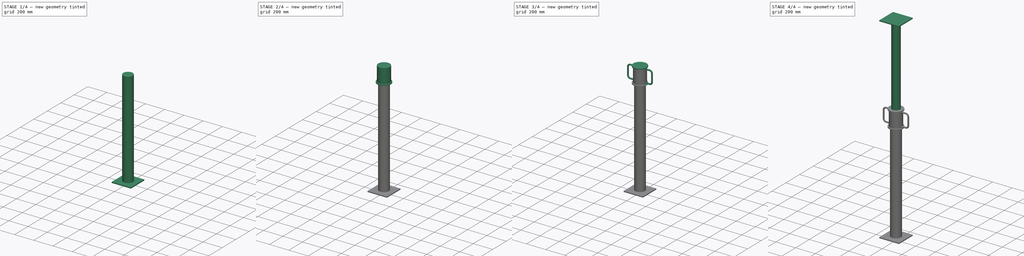
[diagram: build sequence overview — one tinted view per stage of 4, left to right]
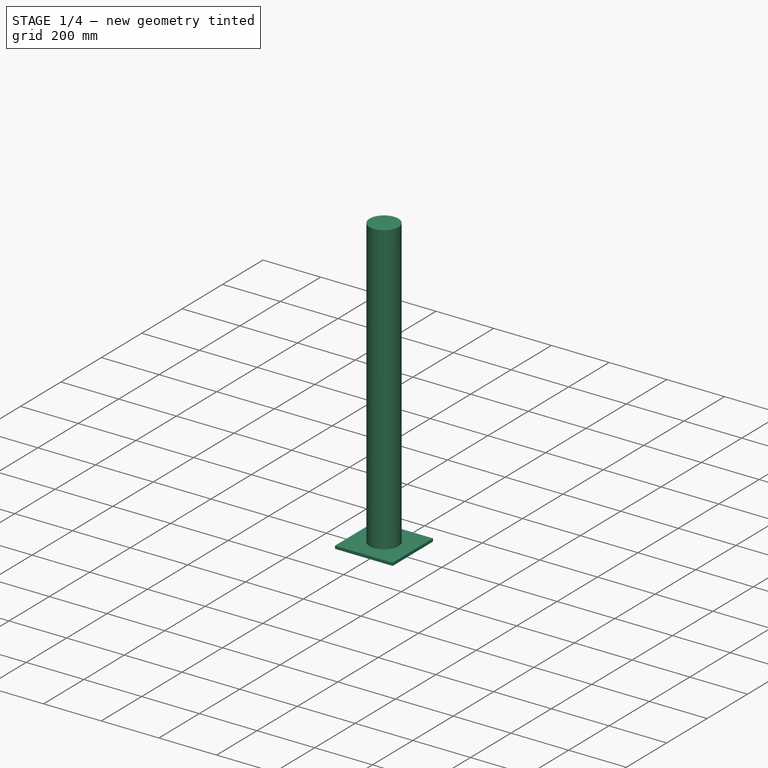
[diagram: stage 1 of 4 — iso view after this stage's code; geometry added in this stage tinted green]
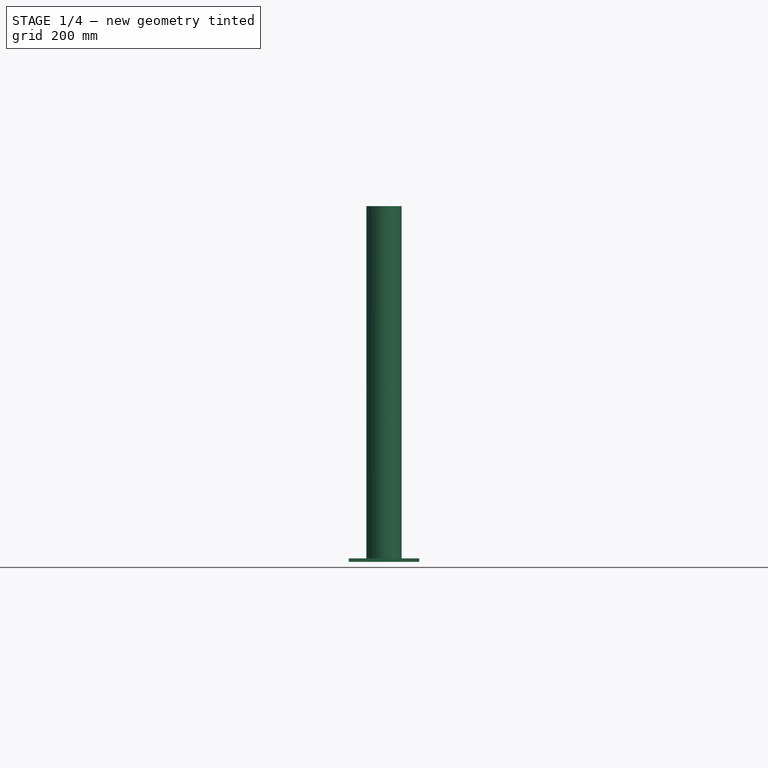
[diagram: stage 1 of 4 — front view after this stage's code; geometry added in this stage tinted green]
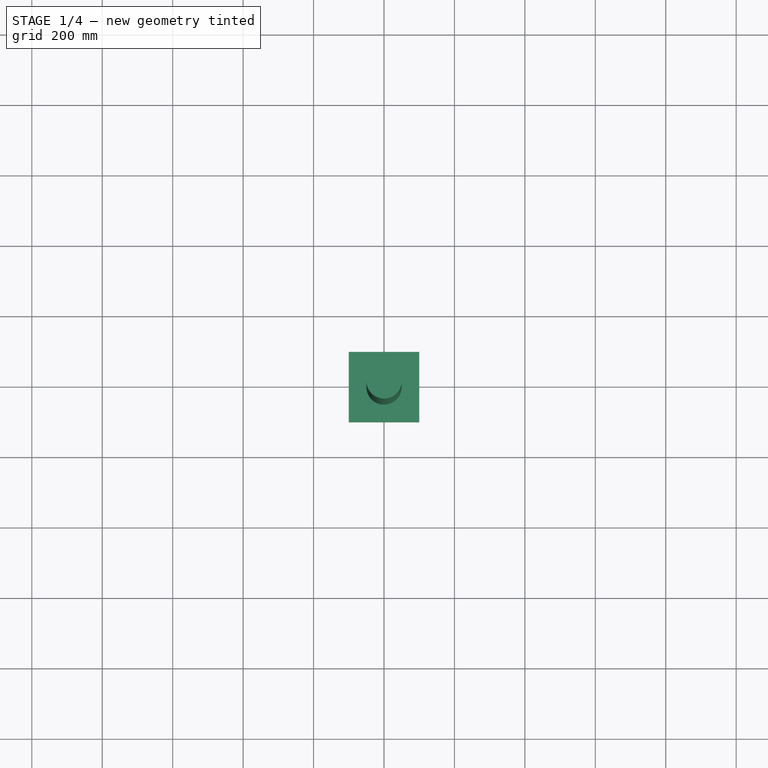
[diagram: stage 1 of 4 — top view after this stage's code; geometry added in this stage tinted green]
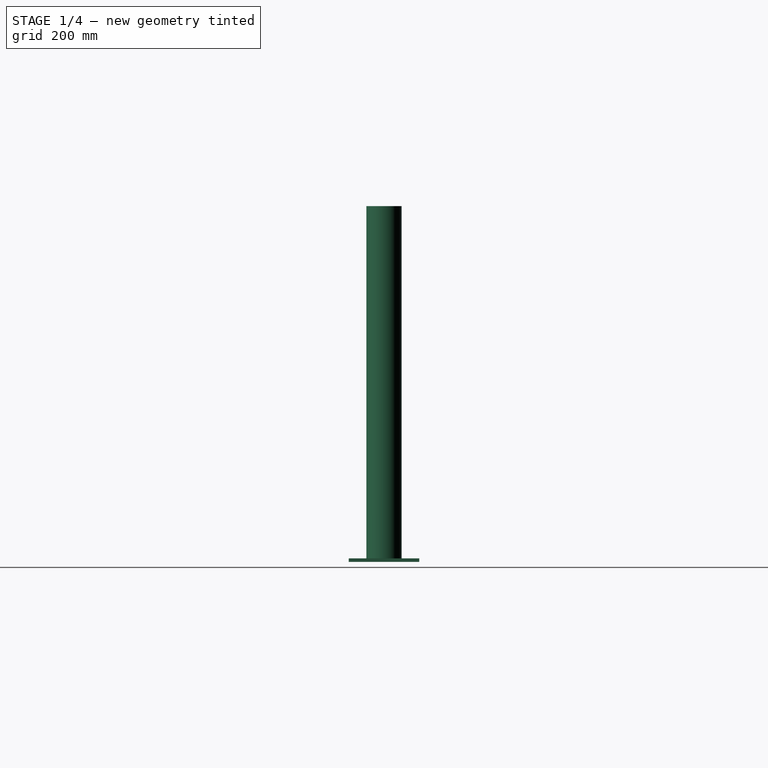
[diagram: stage 1 of 4 — right view after this stage's code; geometry added in this stage tinted green]
FCSTD DOCUMENT  (FreeCAD 0.17R11649 (Git))
Label: Slab adjustable scaffolder
License: All rights reserved
LicenseURL: http://en.wikipedia.org/wiki/All_rights_reserved
objects: Sketcher::SketchObject×9, PartDesign::Pad×7, PartDesign::AdditivePipe×1, PartDesign::Mirrored×1, PartDesign::Body×1
note: 27 computed .brp shape members not serialized (recipe doc carries the construction recipe); baked Part::Feature solids carry a one-line shape summary decoded from their .brp

FEATURE [Sketcher::SketchObject] Sketch
  MapMode = 5
  Support = -> [XY_Plane]
  expr: Constraints[11] = Constraints.Width / 2
  expr: Constraints[10] = Constraints.Length / 2
  sketch-geometry (4):
    g0: LineSegment StartX=-100 StartY=-100 StartZ=0 EndX=100 EndY=-100 EndZ=0
    g1: LineSegment StartX=100 StartY=-100 StartZ=0 EndX=100 EndY=100 EndZ=0
    g2: LineSegment StartX=100 StartY=100 StartZ=0 EndX=-100 EndY=100 EndZ=0
    g3: LineSegment StartX=-100 StartY=100 StartZ=0 EndX=-100 EndY=-100 EndZ=0
  constraints (12):
    c: Coincident(g0,g1)
    c: Coincident(g1,g2)
    c: Coincident(g2,g3)
    c: Coincident(g3,g0)
    c: Horizontal(g0)
    c: Horizontal(g2)
    c: Vertical(g1)
    c: Vertical(g3)
    c: DistanceX(g0,g0) = 200  'Length'
    c: DistanceY(g3,g3) = 200  'Width'
    c: DistanceX(g0,g-1) = 100
    c: DistanceY(g0,g-1) = 100
FEATURE [PartDesign::Pad] Pad
  Length = 10
  Length2 = 100
  Profile = -> Sketch
  Type = 0
FEATURE [Sketcher::SketchObject] Sketch001
  MapMode = 5
  Placement = pos=(0,0,10) rot=(0,0,1;0rad)
  Support = -> [Pad]
  sketch-geometry (1):
    g0: Circle CenterX=0 CenterY=0 CenterZ=0 NormalX=0 NormalY=0 NormalZ=1 Radius=50
  constraints (2):
    c: Coincident(g0,g-1)
    c: Radius(g0) = 50
FEATURE [PartDesign::Pad] Pad001
  BaseFeature = -> Pad
  Length = 1000
  Length2 = 100
  Profile = -> Sketch001
  Type = 0
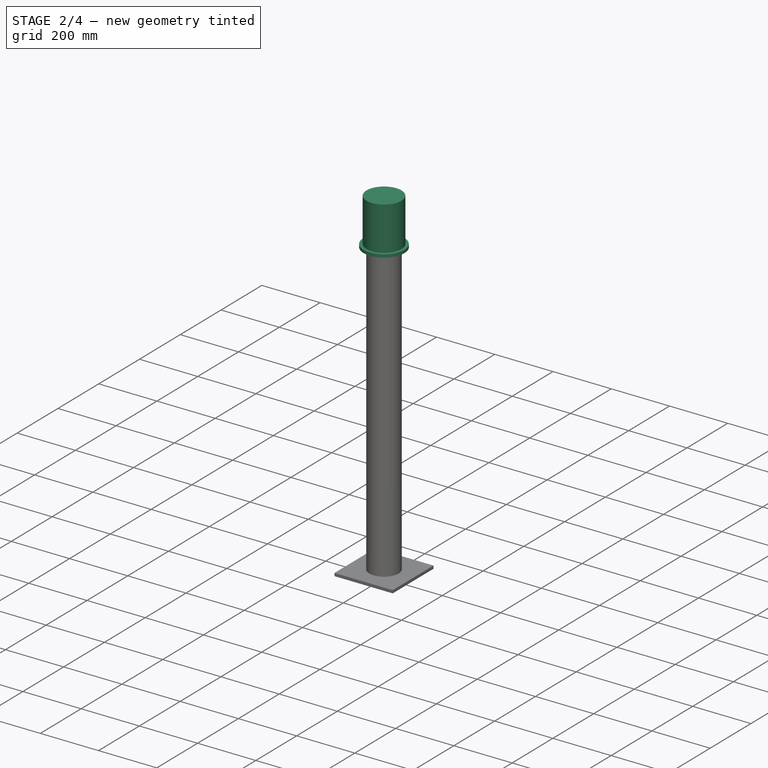
[diagram: stage 2 of 4 — iso view after this stage's code; geometry added in this stage tinted green]
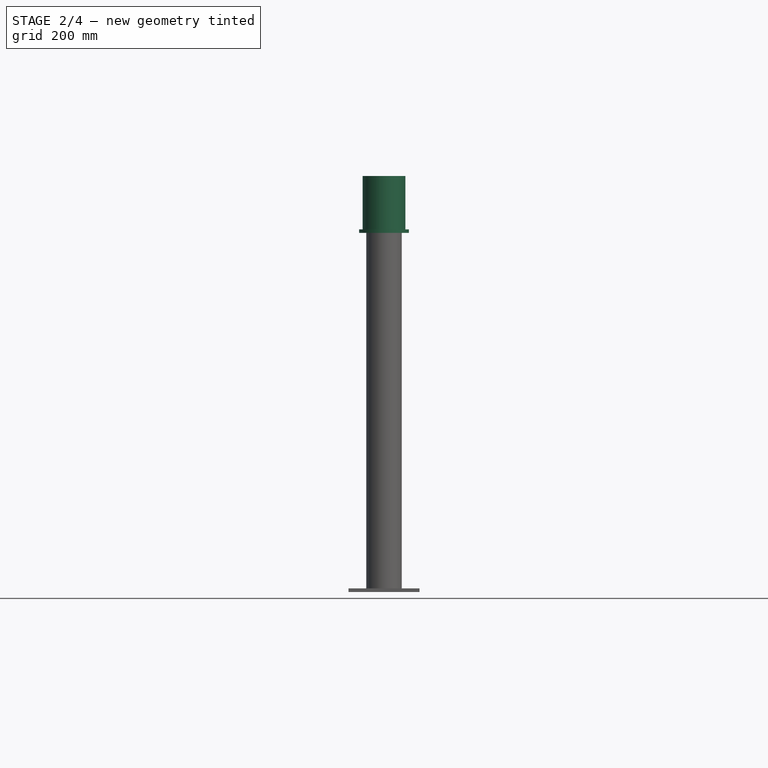
[diagram: stage 2 of 4 — front view after this stage's code; geometry added in this stage tinted green]
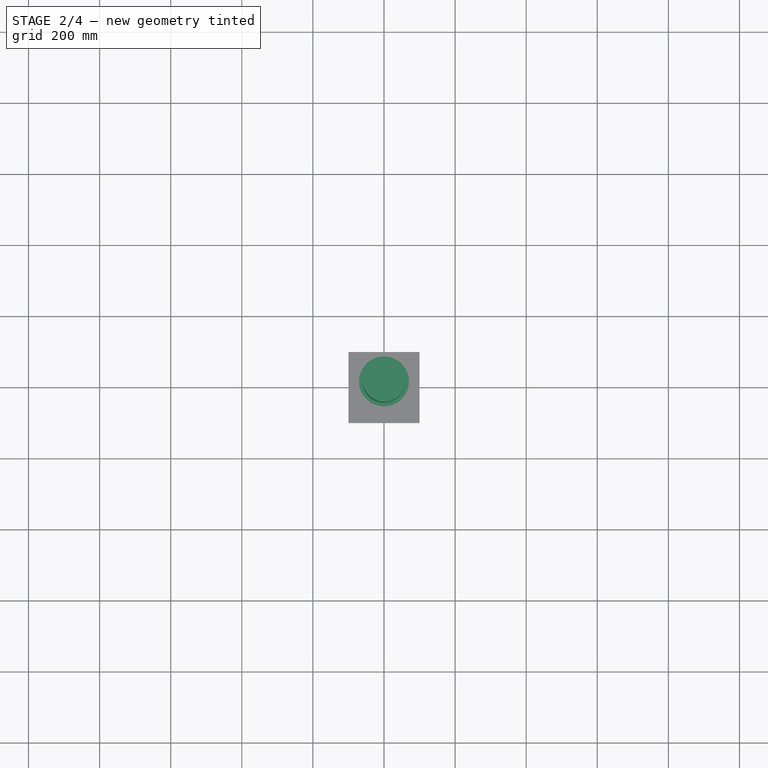
[diagram: stage 2 of 4 — top view after this stage's code; geometry added in this stage tinted green]
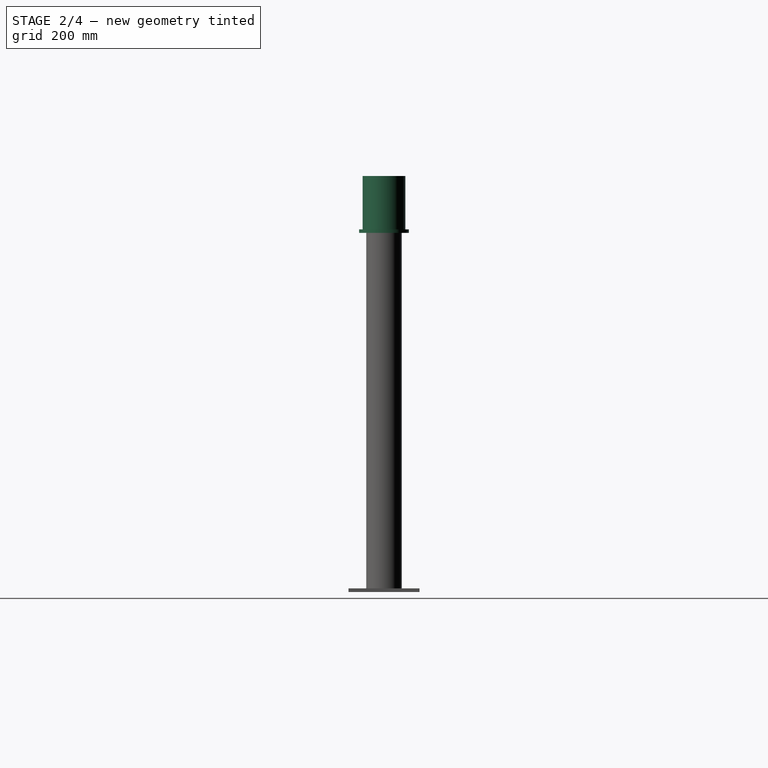
[diagram: stage 2 of 4 — right view after this stage's code; geometry added in this stage tinted green]
FEATURE [Sketcher::SketchObject] Sketch002
  MapMode = 5
  Placement = pos=(0,0,1010) rot=(0,0,1;0rad)
  Support = -> [Pad001]
  sketch-geometry (1):
    g0: Circle CenterX=0 CenterY=0 CenterZ=0 NormalX=0 NormalY=0 NormalZ=1 Radius=70
  constraints (2):
    c: Coincident(g0,g-1)
    c: Radius(g0) = 70
FEATURE [PartDesign::Pad] Pad002
  BaseFeature = -> Pad001
  Length = 10
  Length2 = 100
  Profile = -> Sketch002
  Type = 0
FEATURE [Sketcher::SketchObject] Sketch003
  MapMode = 5
  Placement = pos=(0,0,1020) rot=(0,0,1;0rad)
  Support = -> [Pad002]
  sketch-geometry (1):
    g0: Circle CenterX=0 CenterY=0 CenterZ=0 NormalX=0 NormalY=0 NormalZ=1 Radius=60
  constraints (2):
    c: Coincident(g0,g-1)
    c: Radius(g0) = 60
FEATURE [PartDesign::Pad] Pad003
  BaseFeature = -> Pad002
  Length = 150
  Length2 = 100
  Profile = -> Sketch003
  Type = 0
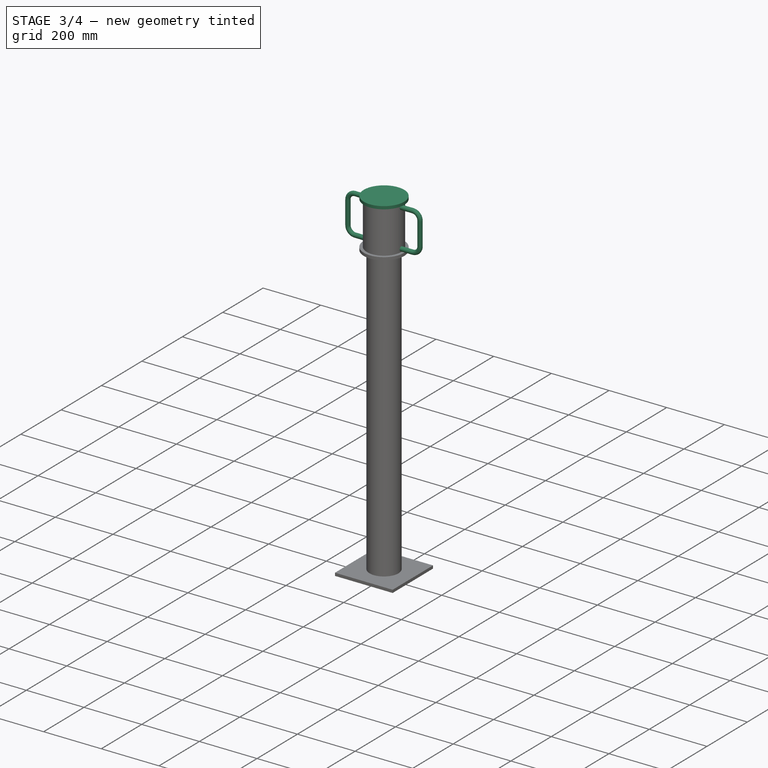
[diagram: stage 3 of 4 — iso view after this stage's code; geometry added in this stage tinted green]
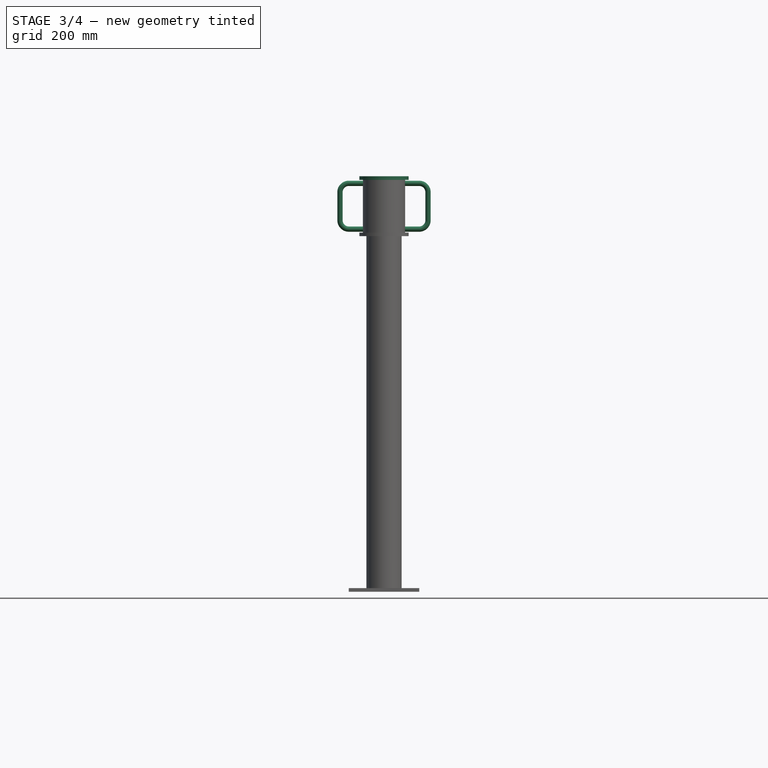
[diagram: stage 3 of 4 — front view after this stage's code; geometry added in this stage tinted green]
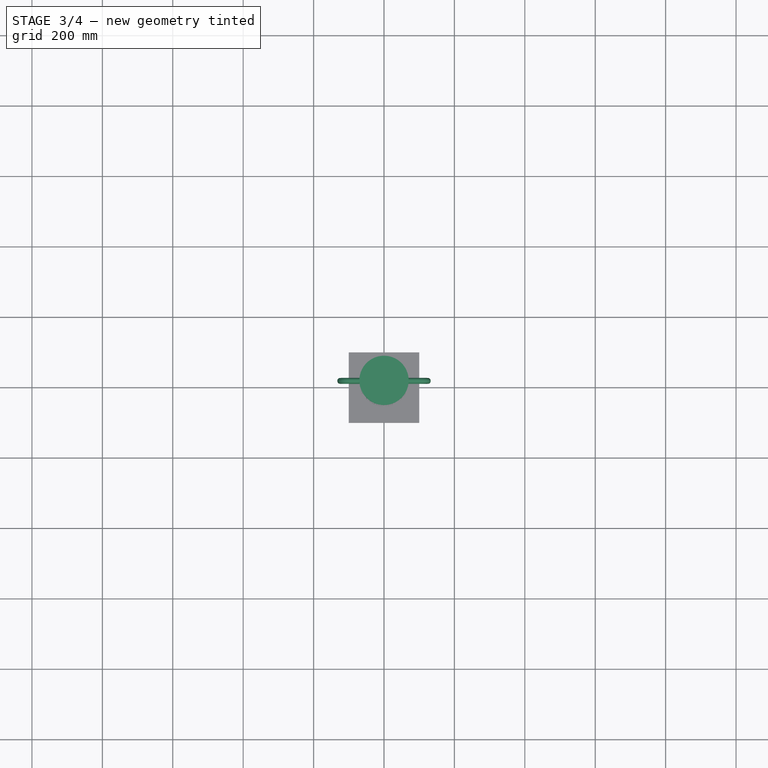
[diagram: stage 3 of 4 — top view after this stage's code; geometry added in this stage tinted green]
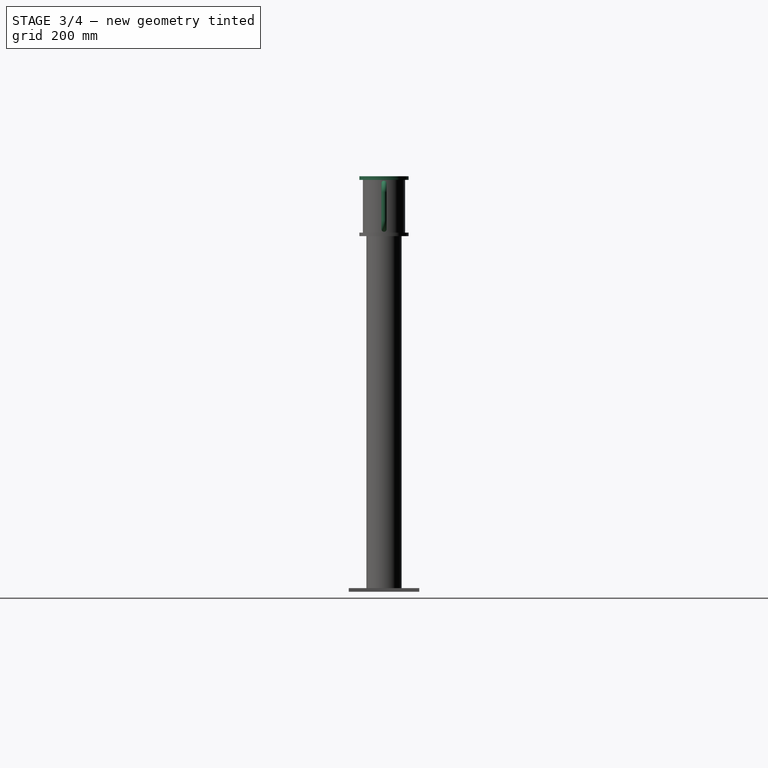
[diagram: stage 3 of 4 — right view after this stage's code; geometry added in this stage tinted green]
FEATURE [Sketcher::SketchObject] Sketch004
  MapMode = 5
  Placement = pos=(0,0,1170) rot=(0,0,1;0rad)
  Support = -> [Pad003]
  sketch-geometry (1):
    g0: Circle CenterX=0 CenterY=0 CenterZ=0 NormalX=0 NormalY=0 NormalZ=1 Radius=70
  constraints (2):
    c: Coincident(g0,g-1)
    c: Radius(g0) = 70
FEATURE [PartDesign::Pad] Pad004
  BaseFeature = -> Pad003
  Length = 10
  Length2 = 100
  Profile = -> Sketch004
  Type = 0
FEATURE [Sketcher::SketchObject] Sketch005
  MapMode = 5
  Placement = pos=(0,0,0) rot=(1,0,0;1.5708rad)
  Support = -> [XZ_Plane]
  sketch-geometry (5):
    g0: LineSegment StartX=0 StartY=1030 StartZ=0 EndX=-100 EndY=1030 EndZ=0
    g1: ArcOfCircle CenterX=-100 CenterY=1055 CenterZ=0 NormalX=0 NormalY=0 NormalZ=1 Radius=25 StartAngle=3.14159 EndAngle=4.71239
    g2: LineSegment StartX=-125 StartY=1055 StartZ=0 EndX=-125 EndY=1135 EndZ=0
    g3: ArcOfCircle CenterX=-100 CenterY=1135 CenterZ=0 NormalX=0 NormalY=0 NormalZ=1 Radius=25 StartAngle=1.5708 EndAngle=3.14159
    g4: LineSegment StartX=-100 StartY=1160 StartZ=0 EndX=0 EndY=1160 EndZ=0
  constraints (14):
    c: Horizontal(g0)
    c: Tangent(g0,g1) = 1.5708
    c: Tangent(g1,g2) = 1.5708
    c: Tangent(g2,g3) = 1.5708
    c: Tangent(g3,g4) = 1.5708
    c: Vertical(g2)
    c: Horizontal(g4)
    c: PointOnObject(g0,g-2)
    c: PointOnObject(g4,g-2)
    c: DistanceX(g0,g-1) = 100
    c: DistanceX(g3,g-1) = 100
    c: DistanceY(g-1,g0) = 1030
    c: DistanceY(g0,g3) = 130
    c: DistanceX(g1,g0) = 25
FEATURE [Sketcher::SketchObject] Sketch006
  MapMode = 5
  Placement = pos=(0,0,0) rot=(0.57735,0.57735,0.57735;2.0944rad)
  Support = -> [YZ_Plane]
  sketch-geometry (1):
    g0: Circle CenterX=0 CenterY=1030 CenterZ=0 NormalX=0 NormalY=0 NormalZ=1 Radius=7.5
  constraints (3):
    c: PointOnObject(g0,g-2)
    c: DistanceY(g-1,g0) = 1030
    c: Radius(g0) = 7.5
FEATURE [PartDesign::AdditivePipe] AdditivePipe
  AuxilleryCurvelinear = true
  AuxillerySpineTangent = false
  BaseFeature = -> Pad004
  Binormal = (0,0,0)
  Mode = 0
  Profile = -> Sketch006
  Spine = -> Sketch005 [Edge1,Edge2,Edge3,Edge4,Edge5]
  SpineTangent = false
  Transformation = 0
  Transition = 0
FEATURE [PartDesign::Mirrored] Mirrored
  BaseFeature = -> AdditivePipe
  MirrorPlane = -> YZ_Plane
  Originals = -> [AdditivePipe]
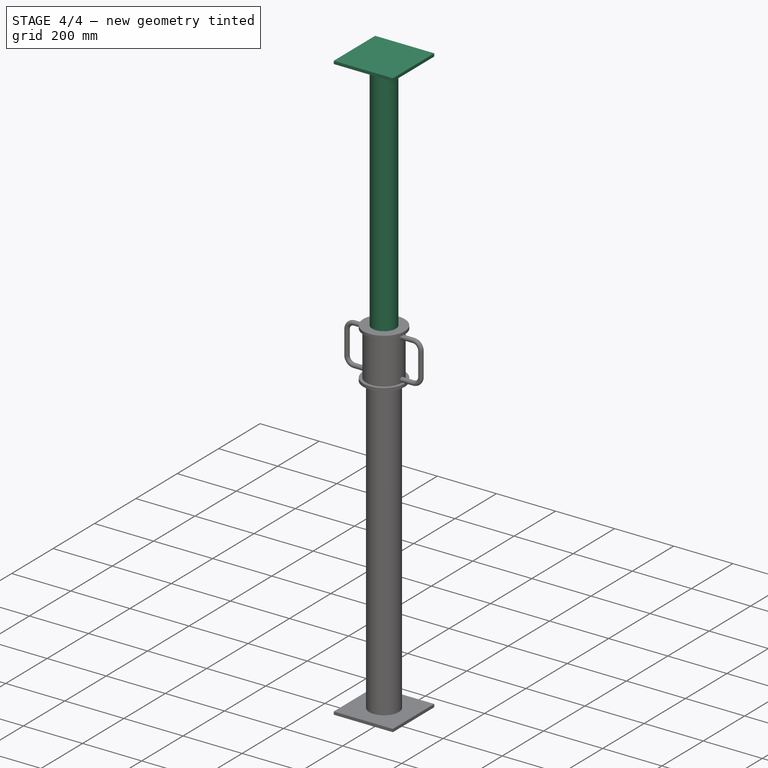
[diagram: stage 4 of 4 — iso view after this stage's code; geometry added in this stage tinted green]
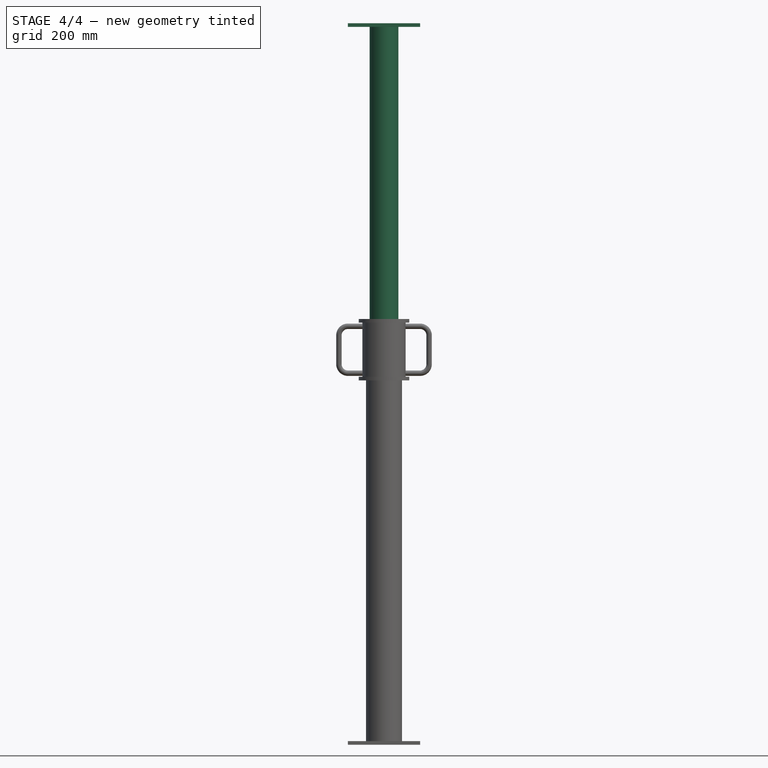
[diagram: stage 4 of 4 — front view after this stage's code; geometry added in this stage tinted green]
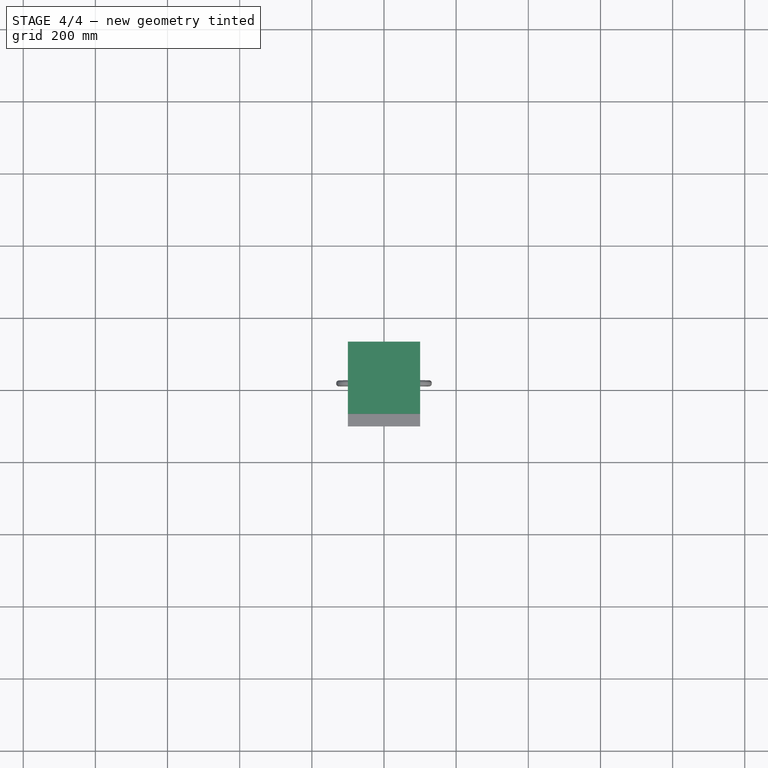
[diagram: stage 4 of 4 — top view after this stage's code; geometry added in this stage tinted green]
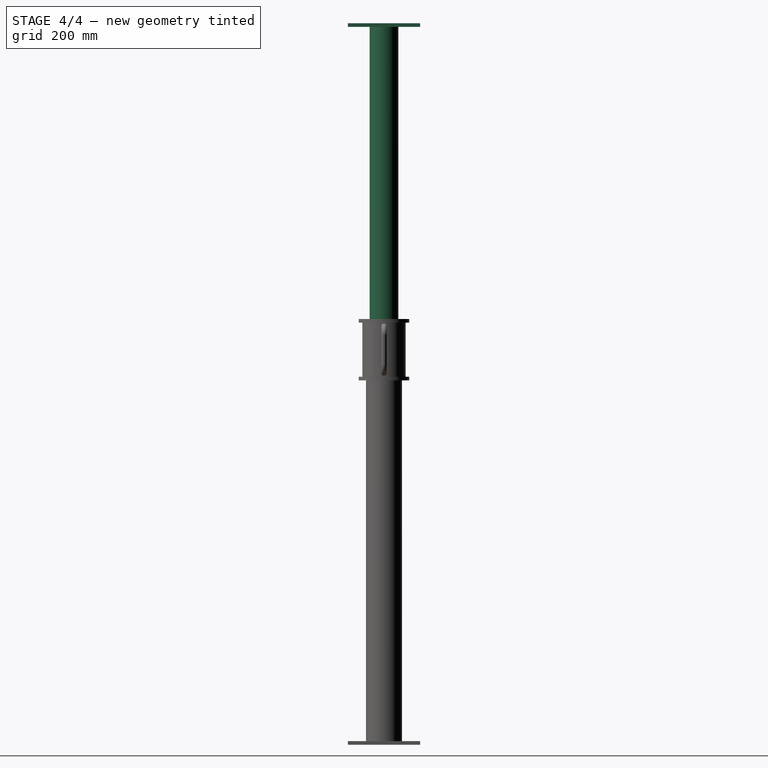
[diagram: stage 4 of 4 — right view after this stage's code; geometry added in this stage tinted green]
FEATURE [Sketcher::SketchObject] Sketch007
  MapMode = 5
  Placement = pos=(0,0,1180) rot=(0,0,1;0rad)
  Support = -> [Mirrored]
  sketch-geometry (1):
    g0: Circle CenterX=0 CenterY=0 CenterZ=0 NormalX=0 NormalY=0 NormalZ=1 Radius=40
  constraints (2):
    c: Coincident(g0,g-1)
    c: Radius(g0) = 40
FEATURE [PartDesign::Pad] Pad005
  BaseFeature = -> Mirrored
  Length = 810
  Length2 = 100
  Profile = -> Sketch007
  Type = 0
FEATURE [Sketcher::SketchObject] Sketch008
  MapMode = 5
  Placement = pos=(0,0,1990) rot=(0,0,1;0rad)
  Support = -> [Pad005]
  expr: Constraints[11] = Sketch.Constraints.Width / 2
  expr: Constraints[10] = Sketch.Constraints.Length / 2
  expr: Constraints[9] = Sketch.Constraints.Length
  expr: Constraints[8] = Sketch.Constraints.Width
  sketch-geometry (4):
    g0: LineSegment StartX=-100 StartY=100 StartZ=0 EndX=100 EndY=100 EndZ=0
    g1: LineSegment StartX=100 StartY=100 StartZ=0 EndX=100 EndY=-100 EndZ=0
    g2: LineSegment StartX=100 StartY=-100 StartZ=0 EndX=-100 EndY=-100 EndZ=0
    g3: LineSegment StartX=-100 StartY=-100 StartZ=0 EndX=-100 EndY=100 EndZ=0
  constraints (12):
    c: Coincident(g0,g1)
    c: Coincident(g1,g2)
    c: Coincident(g2,g3)
    c: Coincident(g3,g0)
    c: Horizontal(g0)
    c: Horizontal(g2)
    c: Vertical(g1)
    c: Vertical(g3)
    c: DistanceY(g3,g3) = 200
    c: DistanceX(g2,g2) = 200
    c: DistanceX(g2,g-1) = 100
    c: DistanceY(g2,g-1) = 100
FEATURE [PartDesign::Pad] Pad006
  BaseFeature = -> Pad005
  Length = 10
  Length2 = 100
  Profile = -> Sketch008
  Type = 0
FEATURE [PartDesign::Body] Body
  Group = -> [Sketch,Pad,Sketch001,Pad001,Sketch002,Pad002,Sketch003,Pad003,Sketch004,Pad004,Sketch005,Sketch006,AdditivePipe,Mirrored,Sketch007,Pad005,Sketch008,Pad006]
  Origin = -> Origin
  Tip = -> Pad006
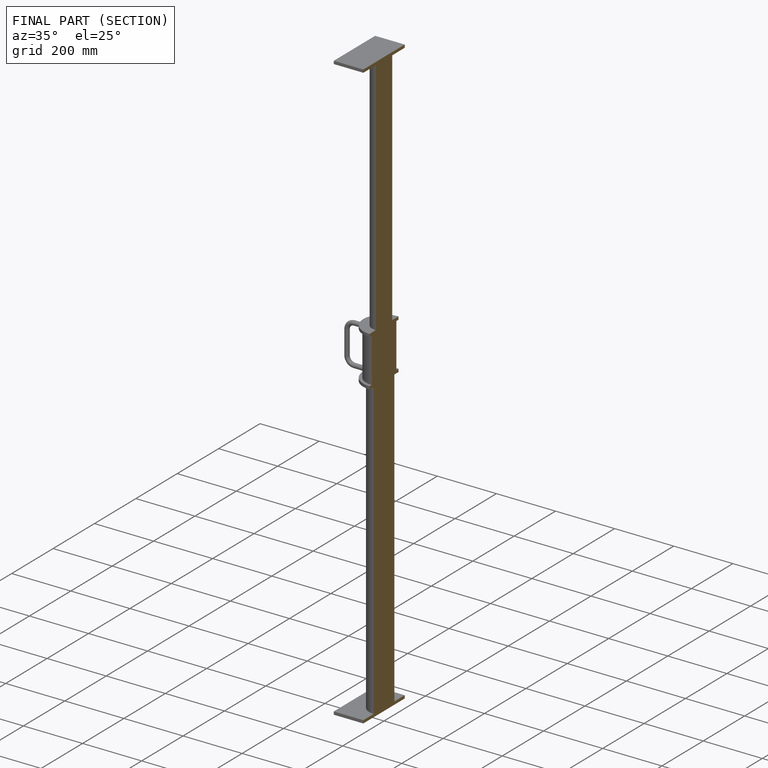
[diagram: finished part — half-section view (interior)]
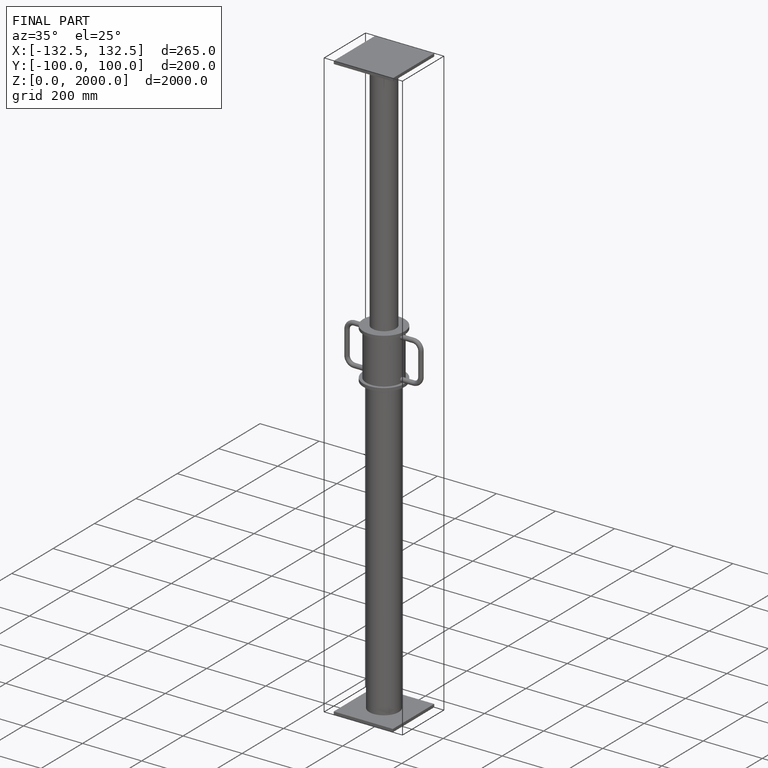
[diagram: finished part — iso view with bounding-box wireframe]
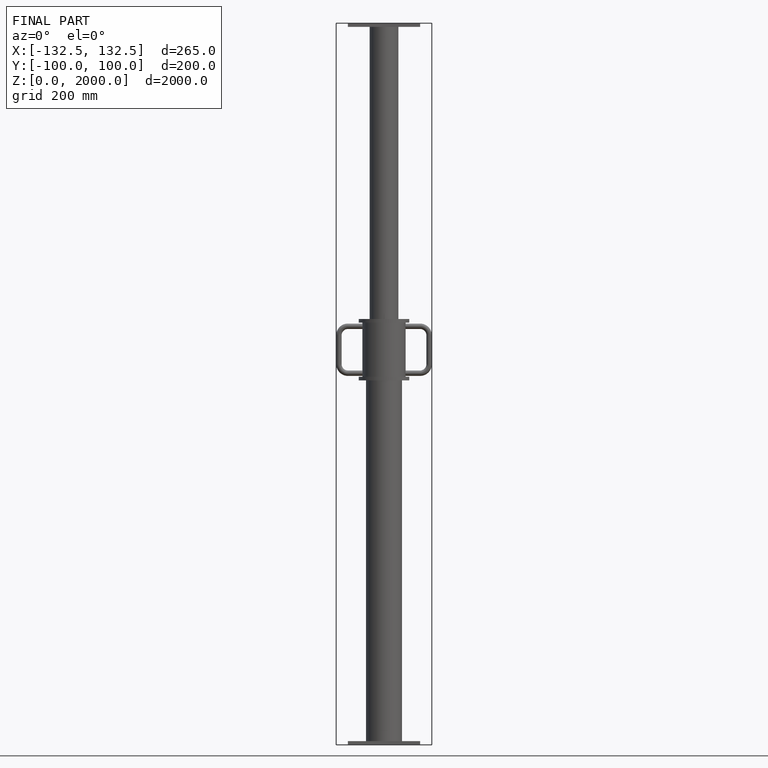
[diagram: finished part — front view with bounding-box wireframe]
